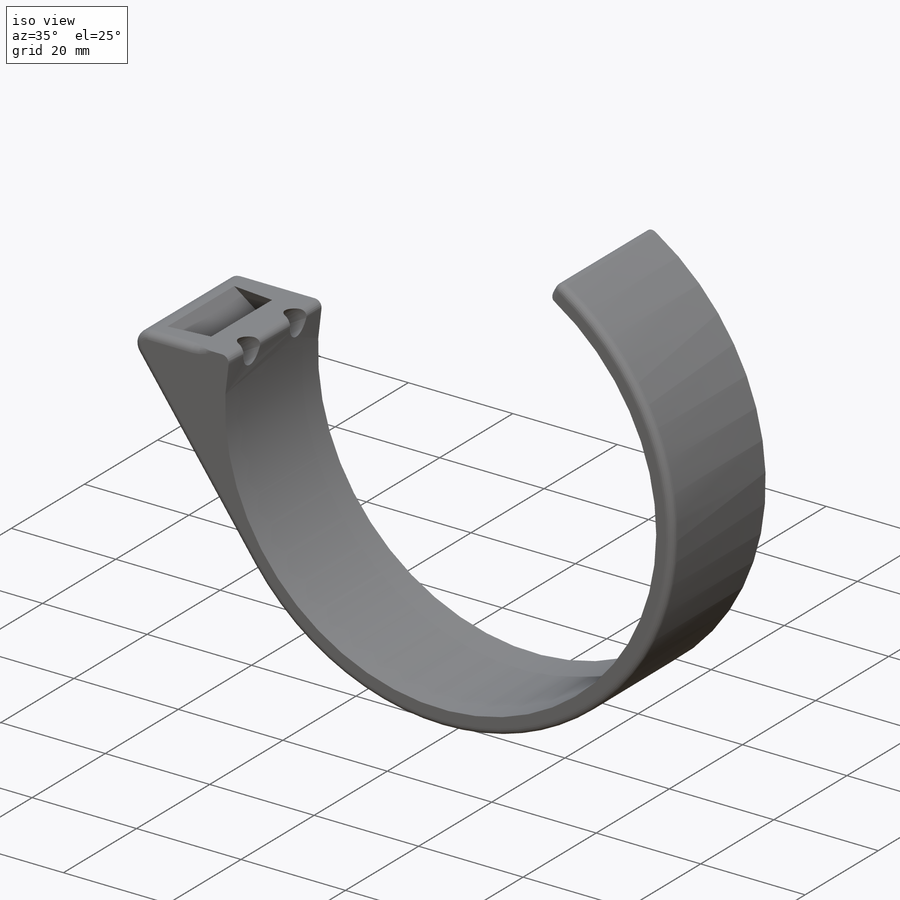
[diagram: iso view]
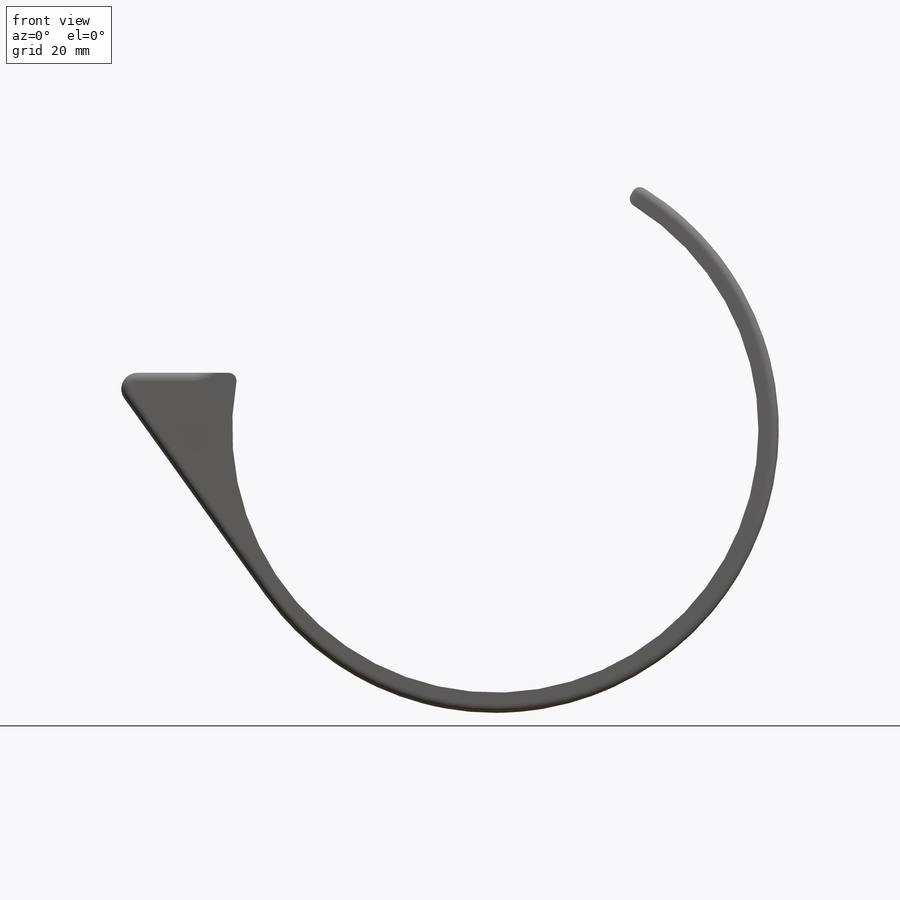
[diagram: front view]
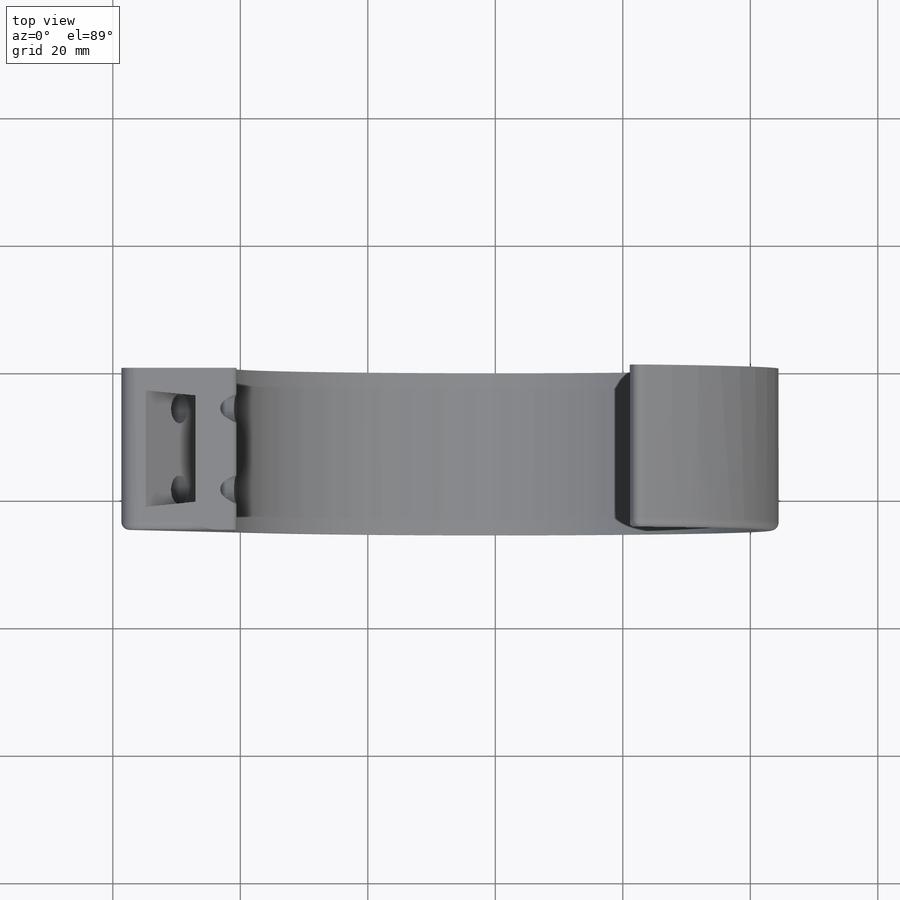
[diagram: top view]
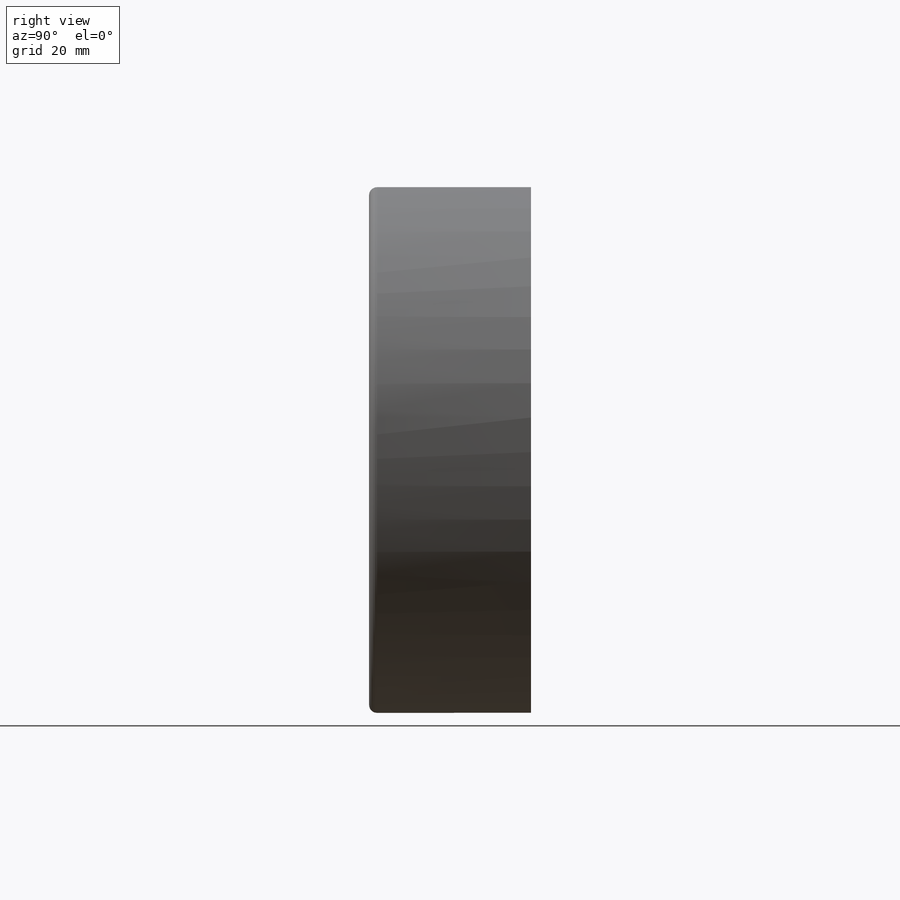
[diagram: right view]
SOLIDWORKS PART (.sldprt)
format: sldprt  version: not decoded by parser v0  size: 255,488 bytes
history: native  units: mm
features: sketch x4, fillet x4, cut_extrude x3, material x1, extrude x1, plane x1 (+13 scaffold rows collapsed)
feature tree (27):
  scaffold x13  (default folders/planes/origin — collapsed)
  material  "ABS"
  sketch  "Sketch1"  dims[D1=82.55mm D2=3.175mm D3=15.24mm D4=20.0mm D5=16.0mm D6=49.6316mm D7=6.35mm]
  extrude  "Boss-Extrude1"  Depth=25.4mm
  sketch  "Sketch2"  dims[D1=4.5mm D2=6.35mm D3=6.35mm D4=12.7mm]
  cut_extrude  "Cut-Extrude1"  Depth=25.4mm
  plane  "Plane1"  Offset=5.08mm
  sketch  "Sketch3"  dims[c1.D1=11.43mm c1.D2=~44.124599mm c2.D2=20.0deg c3.D2=~11.931273mm c4.D2=20.0deg c4.D3=~10.495485mm c5.D3=20.0deg]
  cut_extrude  "Cut-Extrude2"  Depth=6.35mm
  fillet  "Fillet1"  Radius=5.08mm
  fillet  "Fillet2"  Radius=2.54mm
  fillet  "Fillet3"  Radius=1.27mm
  sketch  "Sketch4"  dims[c1.D1=~28.786107mm c2.D1=120.0deg]
  cut_extrude  "Cut-Extrude3"  [1 undecoded]
  fillet  "Fillet4"  Radius=1.27mm
decode coverage: 11 of 12 modeling features carry decoded parameters
note: ~ marks probable driven/reference dimensions
note: 1 parameter value undecoded
note: suppression state not decoded; provenance and decode notes live in map.json
